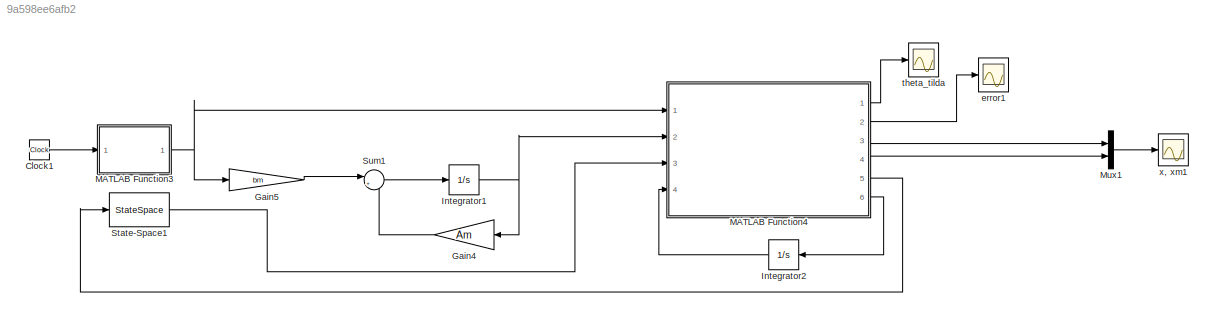
MODEL slx_9a598ee6afb2
KIND model
CONFIG AbsTol = auto
CONFIG EnableMultiTasking = off
CONFIG FixedStep = auto
CONFIG InitFcn = a0 = 2;\na1 = -5;\nb0 = 5;\nA = [0 1; -a0 -a1];\nb = [0; b0];\n\nam0 = 64;\nam1 = 16;\nAm = [0 1; -am0 -am1];\nbm = [0; am0];\n\ntheta1 = (a0 - am0)/b0;\ntheta2 = (a1 - am1)/b0;\nkappa = b0/am0;\n\nQ = eye(2);\nP = lyap(Am', Q);
CONFIG MaxStep = 0.01
CONFIG MinStep = auto
CONFIG RelTol = 1e-3
CONFIG SampleTimeConstraint = Unconstrained
CONFIG SolverName = VariableStepAuto
CONFIG StartTime = 0.0
CONFIG StopTime = 300
BLOCK [Clock] Clock1
BLOCK [Gain] Gain4
  Gain = Am
  Multiplication = Matrix(K*u)
  NameLocation = top
BLOCK [Gain] Gain5
  Gain = bm
  Multiplication = Matrix(K*u)
BLOCK [Integrator] Integrator1
  InitialCondition = [0; 0]
  Ports = [1, 1]
BLOCK [Integrator] Integrator2
  InitialCondition = [0; 0]
  NameLocation = top
  Ports = [1, 1]
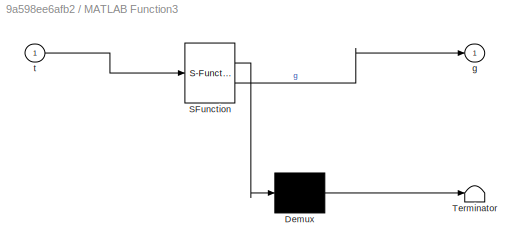
BLOCK [SubSystem] MATLAB Function3
  ErrorFcn = Stateflow.Translate.translate
  PermitHierarchicalResolution = ExplicitOnly
  Ports = [1, 1]
  RequestExecContextInheritance = off
  SFBlockType = MATLAB Function
  TreatAsAtomicUnit = on
BLOCK [Demux] MATLAB Function3/ Demux 
  Outputs = 1
  Ports = [1, 1]
BLOCK [S-Function] MATLAB Function3/ SFunction 
  EnableBusSupport = on
  FunctionName = sf_sfun
  PortCounts = [1 2]
  Ports = [1, 2]
  SFcnIsStateOwnerBlock = off
  SFunctionDeploymentMode = off
  Tag = Stateflow S-Function 3
BLOCK [Terminator] MATLAB Function3/ Terminator 
BLOCK [Outport] MATLAB Function3/g
BLOCK [Inport] MATLAB Function3/t
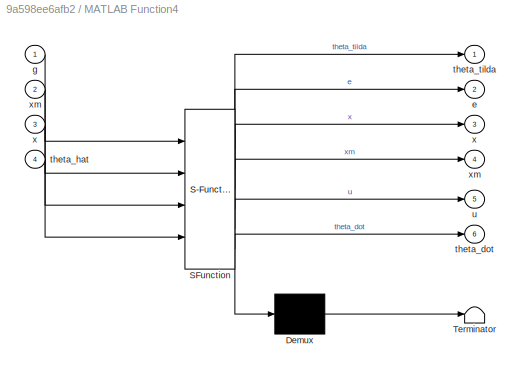
BLOCK [SubSystem] MATLAB Function4
  ErrorFcn = Stateflow.Translate.translate
  PermitHierarchicalResolution = ExplicitOnly
  Ports = [4, 6]
  RequestExecContextInheritance = off
  SFBlockType = MATLAB Function
  TreatAsAtomicUnit = on
BLOCK [Demux] MATLAB Function4/ Demux 
  Outputs = 1
  Ports = [1, 1]
BLOCK [S-Function] MATLAB Function4/ SFunction 
  EnableBusSupport = on
  FunctionName = sf_sfun
  Parameters = P,b,kappa,theta
  PortCounts = [4 7]
  Ports = [4, 7]
  SFcnIsStateOwnerBlock = off
  SFunctionDeploymentMode = off
  Tag = Stateflow S-Function 4
BLOCK [Terminator] MATLAB Function4/ Terminator 
BLOCK [Outport] MATLAB Function4/e
  Port = 2
BLOCK [Inport] MATLAB Function4/g
BLOCK [Outport] MATLAB Function4/theta_dot
  Port = 6
BLOCK [Inport] MATLAB Function4/theta_hat
  Port = 4
BLOCK [Outport] MATLAB Function4/theta_tilda
BLOCK [Outport] MATLAB Function4/u
  Port = 5
BLOCK [Outport] MATLAB Function4/x
  Port = 3
BLOCK [Inport] MATLAB Function4/x 
  Port = 3
BLOCK [Outport] MATLAB Function4/xm
  Port = 4
BLOCK [Inport] MATLAB Function4/xm 
  Port = 2
BLOCK [Mux] Mux1
  DisplayOption = bar
  Inputs = 2
  Ports = [2, 1]
BLOCK [StateSpace] State-Space1
  A = A + [0 0; 20 20]
  B = b
  C = eye(2)
  D = [0; 0]
  InitialCondition = [0; 0]
  Ports = [1, 1]
BLOCK [Sum] Sum1
  Inputs = |++
  Ports = [2, 1]
BLOCK [Scope] error1
  Floating = off
  NumInputPorts = 1
  Ports = [1]
  ScopeSpecificationString = Simulink.scopes.TimeScopeBlockCfg('CurrentConfiguration', extmgr.ConfigurationSet(extmgr.Configuration('Core','General UI',true,'FigureColor',[0.8 0.8 0.8]),extmgr.Configuration('Core','Source UI',true),extmgr.Configuration('Sources','WiredSimulink',true,'DataLoggingVariableName','ScopeData1'),extmgr.Configuration('Visuals','Time Domain',true,'SerializedDisplays',{struct('MinYLimReal','-4.97093','...<+1592ch>
BLOCK [Scope] theta_tilda
  Floating = off
  NumInputPorts = 1
  Ports = [1]
  ScopeSpecificationString = Simulink.scopes.TimeScopeBlockCfg('CurrentConfiguration', extmgr.ConfigurationSet(extmgr.Configuration('Core','General UI',true,'FigureColor',[0.8 0.8 0.8]),extmgr.Configuration('Core','Source UI',true),extmgr.Configuration('Sources','WiredSimulink',true,'DataLoggingVariableName','ScopeData3'),extmgr.Configuration('Visuals','Time Domain',true,'SerializedDisplays',{struct('MinYLimReal','-16.93748',...<+1594ch>
BLOCK [Scope] x, xm1
  Floating = off
  NumInputPorts = 1
  Ports = [1]
  ScopeSpecificationString = Simulink.scopes.TimeScopeBlockCfg('CurrentConfiguration', extmgr.ConfigurationSet(extmgr.Configuration('Core','General UI',true),extmgr.Configuration('Core','Source UI',true),extmgr.Configuration('Sources','WiredSimulink',true,'DataLoggingVariableName','ScopeData2'),extmgr.Configuration('Visuals','Time Domain',true,'SerializedDisplays',{struct('MinYLimReal','-16.14034','MaxYLimReal','75.76526','YL...<+1405ch>
LINE Clock1:1 -> MATLAB Function3:1
LINE Gain4:1 -> Sum1:2
LINE Gain5:1 -> Sum1:1
NET Integrator1:1 -> Gain4:1, MATLAB Function4:2
LINE Integrator2:1 -> MATLAB Function4:4
NET MATLAB Function3:1 -> Gain5:1, MATLAB Function4:1
LINE MATLAB Function4:1 -> theta_tilda:1
LINE MATLAB Function4:2 -> error1:1
LINE MATLAB Function4:3 -> Mux1:1
LINE MATLAB Function4:4 -> Mux1:2
LINE MATLAB Function4:5 -> State-Space1:1
LINE MATLAB Function4:6 -> Integrator2:1
LINE Mux1:1 -> x, xm1:1
LINE State-Space1:1 -> MATLAB Function4:3
LINE Sum1:1 -> Integrator1:1
note: NET lines group one-source signal fan-out (src -> all destinations, sorted); 1:1 wires keep LINE
CHART MATLAB Function3 states=1 transitions=1
  STATE_LABEL 'eML_blk_kernel()'
  STATE_LABEL 'SCRIPT:\nfunction g = fcn(t)\n\ng = 10*cos(0.5*t) + 2*sin(t) + 12;\n'
CHART MATLAB Function4 states=1 transitions=1
  STATE_LABEL 'eML_blk_kernel()'
  STATE_LABEL "SCRIPT:\nfunction [theta_tilda, e, x, xm, u, theta_dot] = fcn(g, xm, x, kappa, theta, theta_hat, P, b)\n\ngamma = 100;\ne = xm-x;\ntheta_dot = gamma*x*b'*P*e;\nu = theta_hat'*x + g/kappa;\ntheta_tilda = theta - theta_hat;"
CHART  states=0 transitions=0
CHART  states=0 transitions=0
